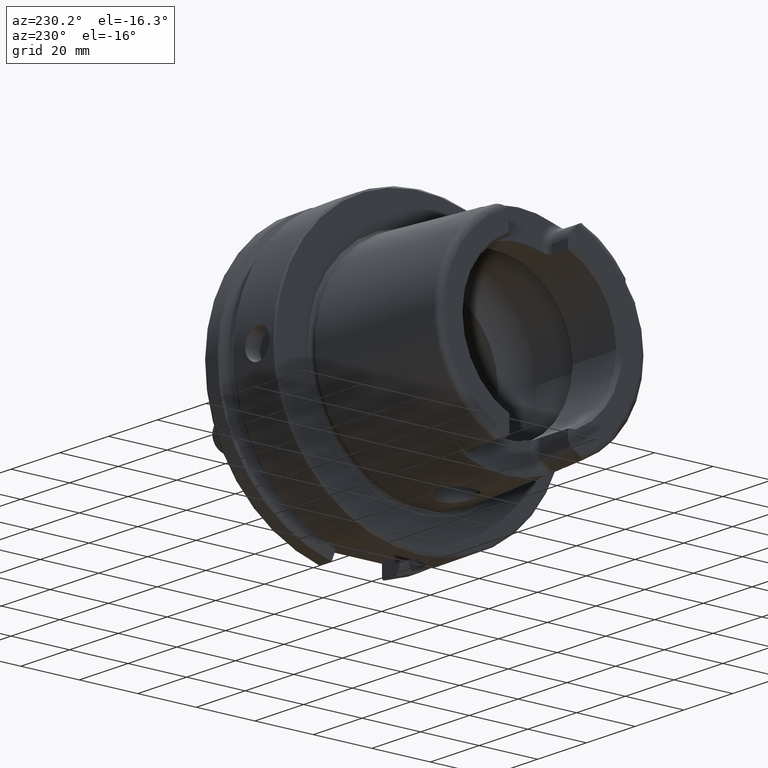
[diagram: clean part render]
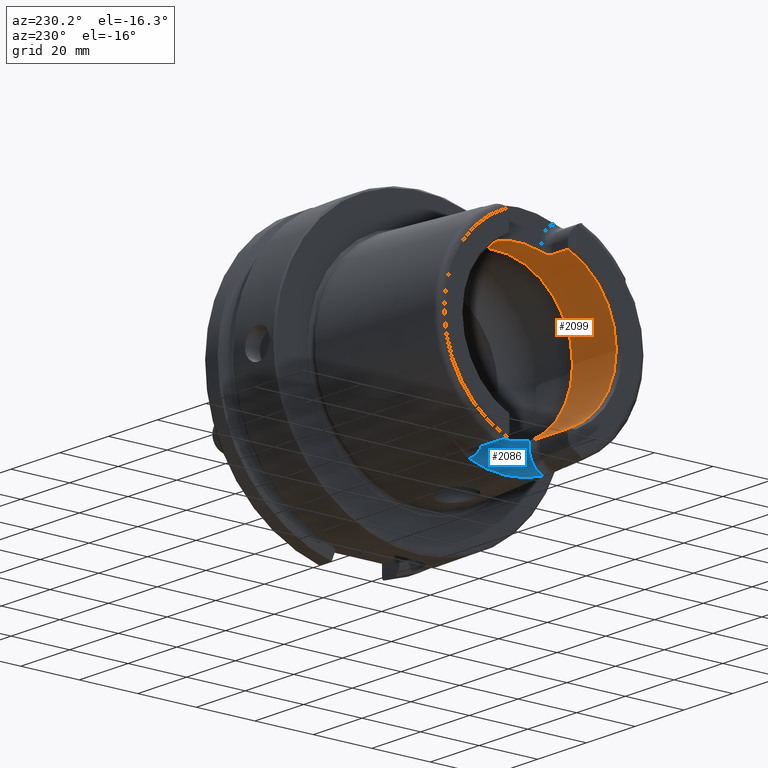
[diagram: same view with the hole feature highlighted: cylindrical wall and planar end face, labeled with their STEP entity ids]
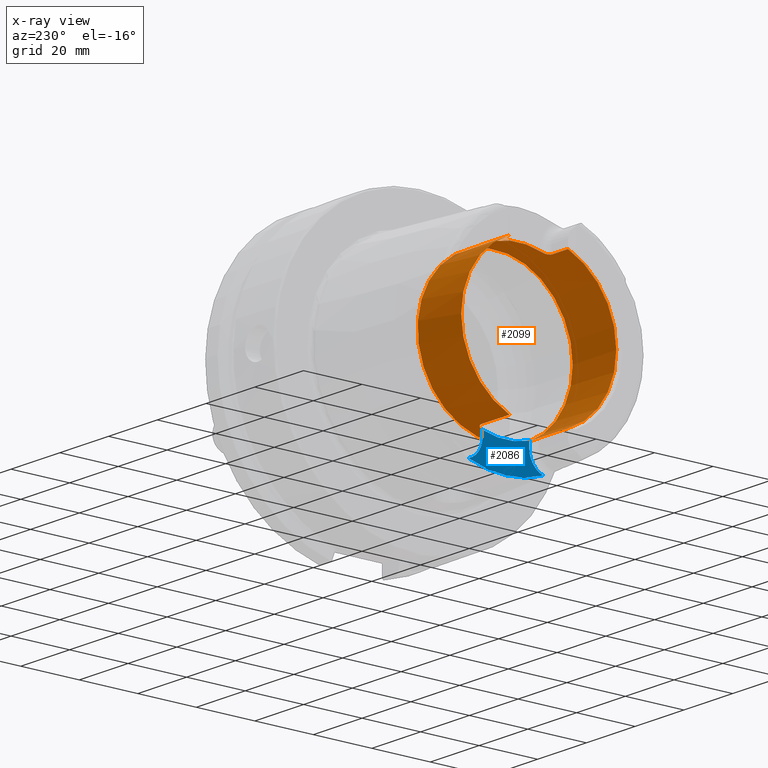
[diagram: x-ray of the same camera — body ghosted, the hole faces saturated]
A machine part, auxiliary view. The highlighted faces form one hole feature of diameter 53 mm: the cylindrical wall (entity #2099, orange) and its adjacent planar end face (entity #2086, blue) — they share a circular edge in the B-rep.
The next image is the same camera in x-ray (body ghosted, the hole faces saturated) — the bore reads through the body.
Wall:
#92=B_SPLINE_CURVE_WITH_KNOTS('',3,(#4445,#4446,#4447,#4448,#4449,#4450,
#4451,#4452,#4453,#4454),.UNSPECIFIED.,.F.,.F.,(4,2,2,2,4),(0.307245873696209,
0.387318131676521,0.467390389656833,0.542677307505841,0.617964225354849),
 .UNSPECIFIED.);
#93=B_SPLINE_CURVE_WITH_KNOTS('',3,(#4463,#4464,#4465,#4466,#4467,#4468,
#4469,#4470,#4471,#4472),.UNSPECIFIED.,.F.,.F.,(4,2,2,2,4),(0.61796422535485,
0.694491364966707,0.771018504578565,0.849854597041439,0.928690689504313),
 .UNSPECIFIED.);
#94=B_SPLINE_CURVE_WITH_KNOTS('',3,(#4485,#4486,#4487,#4488,#4489,#4490,
#4491,#4492,#4493,#4494),.UNSPECIFIED.,.F.,.F.,(4,2,2,2,4),(0.617964225354849,
0.693251143203857,0.768538061052865,0.848610319033177,0.928682577013489),
 .UNSPECIFIED.);
#95=B_SPLINE_CURVE_WITH_KNOTS('',3,(#4514,#4515,#4516,#4517,#4518,#4519,
#4520,#4521,#4522,#4523),.UNSPECIFIED.,.F.,.F.,(4,2,2,2,4),(0.307245873696209,
0.387318131676521,0.467390389656833,0.542677307505841,0.617964225354849),
 .UNSPECIFIED.);
#127=CYLINDRICAL_SURFACE('',#2353,26.5);
#205=LINE('',#3229,#312);
#213=LINE('',#3304,#320);
#217=LINE('',#3368,#324);
#276=LINE('',#4510,#383);
#280=LINE('',#4558,#387);
#312=VECTOR('',#2533,10.);
#320=VECTOR('',#2579,10.);
#324=VECTOR('',#2601,10.);
#383=VECTOR('',#2880,10.);
#387=VECTOR('',#2924,26.5);
#509=FACE_OUTER_BOUND('',#637,.T.);
#637=EDGE_LOOP('',(#1856,#1857,#1858,#1859,#1860,#1861,#1862,#1863,#1864,
#1865,#1866,#1867,#1868,#1869,#1870,#1871,#1872));
#698=CIRCLE('',#2207,26.5);
#699=CIRCLE('',#2208,26.5);
#762=CIRCLE('',#2332,26.5);
#767=CIRCLE('',#2344,26.5);
#768=CIRCLE('',#2347,26.5);
#771=CIRCLE('',#2354,26.5);
#772=CIRCLE('',#2355,26.5);
#841=VERTEX_POINT('',#3219);
#844=VERTEX_POINT('',#3227);
#853=VERTEX_POINT('',#3276);
#855=VERTEX_POINT('',#3282);
#856=VERTEX_POINT('',#3284);
#862=VERTEX_POINT('',#3302);
#868=VERTEX_POINT('',#3335);
#873=VERTEX_POINT('',#3367);
#980=VERTEX_POINT('',#4443);
#982=VERTEX_POINT('',#4462);
#986=VERTEX_POINT('',#4483);
#987=VERTEX_POINT('',#4484);
#989=VERTEX_POINT('',#4504);
#991=VERTEX_POINT('',#4555);
#992=VERTEX_POINT('',#4556);
#1068=EDGE_CURVE('',#841,#844,#205,.T.);
#1081=EDGE_CURVE('',#855,#856,#698,.T.);
#1082=EDGE_CURVE('',#856,#853,#699,.T.);
#1091=EDGE_CURVE('',#855,#862,#213,.T.);
#1104=EDGE_CURVE('',#873,#868,#217,.T.);
#1262=EDGE_CURVE('',#980,#862,#92,.T.);
#1266=EDGE_CURVE('',#873,#982,#93,.T.);
#1272=EDGE_CURVE('',#986,#987,#94,.T.);
#1278=EDGE_CURVE('',#989,#987,#762,.T.);
#1281=EDGE_CURVE('',#986,#853,#276,.T.);
#1284=EDGE_CURVE('',#989,#844,#95,.T.);
#1288=EDGE_CURVE('',#980,#982,#767,.T.);
#1290=EDGE_CURVE('',#841,#868,#768,.T.);
#1294=EDGE_CURVE('',#991,#992,#771,.T.);
#1295=EDGE_CURVE('',#991,#856,#280,.T.);
#1296=EDGE_CURVE('',#992,#991,#772,.T.);
#1856=ORIENTED_EDGE('',*,*,#1294,.F.);
#1857=ORIENTED_EDGE('',*,*,#1295,.T.);
#1858=ORIENTED_EDGE('',*,*,#1081,.F.);
#1859=ORIENTED_EDGE('',*,*,#1091,.T.);
#1860=ORIENTED_EDGE('',*,*,#1262,.F.);
#1861=ORIENTED_EDGE('',*,*,#1288,.T.);
#1862=ORIENTED_EDGE('',*,*,#1266,.F.);
#1863=ORIENTED_EDGE('',*,*,#1104,.T.);
#1864=ORIENTED_EDGE('',*,*,#1290,.F.);
#1865=ORIENTED_EDGE('',*,*,#1068,.T.);
#1866=ORIENTED_EDGE('',*,*,#1284,.F.);
#1867=ORIENTED_EDGE('',*,*,#1278,.T.);
#1868=ORIENTED_EDGE('',*,*,#1272,.F.);
#1869=ORIENTED_EDGE('',*,*,#1281,.T.);
#1870=ORIENTED_EDGE('',*,*,#1082,.F.);
#1871=ORIENTED_EDGE('',*,*,#1295,.F.);
#1872=ORIENTED_EDGE('',*,*,#1296,.F.);
#2099=ADVANCED_FACE('',(#509),#127,.F.);
#2207=AXIS2_PLACEMENT_3D('',#3285,#2557,#2558);
#2208=AXIS2_PLACEMENT_3D('',#3286,#2559,#2560);
#2332=AXIS2_PLACEMENT_3D('',#4505,#2873,#2874);
#2344=AXIS2_PLACEMENT_3D('',#4532,#2901,#2902);
#2347=AXIS2_PLACEMENT_3D('',#4547,#2907,#2908);
#2353=AXIS2_PLACEMENT_3D('',#4554,#2920,#2921);
#2354=AXIS2_PLACEMENT_3D('',#4557,#2922,#2923);
#2355=AXIS2_PLACEMENT_3D('',#4559,#2925,#2926);
#2533=DIRECTION('',(1.,0.,0.));
#2557=DIRECTION('center_axis',(1.,0.,0.));
#2558=DIRECTION('ref_axis',(0.,-1.,0.));
#2559=DIRECTION('center_axis',(1.,0.,0.));
#2560=DIRECTION('ref_axis',(0.,-1.,0.));
#2579=DIRECTION('',(1.,0.,0.));
#2601=DIRECTION('',(-1.,0.,0.));
#2873=DIRECTION('center_axis',(-1.,0.,0.));
#2874=DIRECTION('ref_axis',(0.,1.,0.));
#2880=DIRECTION('',(-1.,0.,0.));
#2901=DIRECTION('center_axis',(-1.,0.,0.));
#2902=DIRECTION('ref_axis',(0.,1.,0.));
#2907=DIRECTION('center_axis',(1.,0.,0.));
#2908=DIRECTION('ref_axis',(0.,-1.,0.));
#2920=DIRECTION('center_axis',(-1.,0.,0.));
#2921=DIRECTION('ref_axis',(0.,1.,0.));
#2922=DIRECTION('center_axis',(-1.,0.,0.));
#2923=DIRECTION('ref_axis',(0.,0.,1.));
#2924=DIRECTION('',(-1.,0.,0.));
#2925=DIRECTION('center_axis',(-1.,0.,0.));
#2926=DIRECTION('ref_axis',(0.,0.,1.));
#3219=CARTESIAN_POINT('',(-48.5,10.01,-24.5367051577835));
#3227=CARTESIAN_POINT('',(-37.,10.01,-24.5367051577835));
#3229=CARTESIAN_POINT('',(-40.2903629710818,10.01,-24.5367051577835));
#3276=CARTESIAN_POINT('',(-48.5,-10.01,-24.5367051577835));
#3282=CARTESIAN_POINT('',(-48.5,-10.01,24.5367051577835));
#3284=CARTESIAN_POINT('',(-48.5,-26.5,3.24531401774049E-15));
#3285=CARTESIAN_POINT('Origin',(-48.5,0.,0.));
#3286=CARTESIAN_POINT('Origin',(-48.5,0.,0.));
#3302=CARTESIAN_POINT('',(-42.,-10.01,24.5367051577835));
#3304=CARTESIAN_POINT('',(-40.2903629710818,-10.01,24.5367051577835));
#3335=CARTESIAN_POINT('',(-48.5,10.01,24.5367051577835));
#3367=CARTESIAN_POINT('',(-42.,10.01,24.5367051577835));
#3368=CARTESIAN_POINT('',(-40.2903629710818,10.01,24.5367051577835));
#4443=CARTESIAN_POINT('',(-40.,-8.01,25.2604414054862));
#4445=CARTESIAN_POINT('Ctrl Pts',(-40.,-8.01,25.2604414054862));
#4446=CARTESIAN_POINT('Ctrl Pts',(-40.,-8.26442271458071,25.1797648285777));
#4447=CARTESIAN_POINT('Ctrl Pts',(-40.0513332778729,-8.53503831367686,25.0892968127514));
#4448=CARTESIAN_POINT('Ctrl Pts',(-40.2604388709541,-9.03317850506395,24.9142806373643));
#4449=CARTESIAN_POINT('Ctrl Pts',(-40.4182028025644,-9.2607746884821,24.8299262887475));
#4450=CARTESIAN_POINT('Ctrl Pts',(-40.7762398849713,-9.61038047170956,24.6966285655713));
#4451=CARTESIAN_POINT('Ctrl Pts',(-40.996584045901,-9.75993653512726,24.6374761492843));
#4452=CARTESIAN_POINT('Ctrl Pts',(-41.4829332858843,-9.95981108540838,24.557356442995));
#4453=CARTESIAN_POINT('Ctrl Pts',(-41.74904360717,-10.01,24.5367051577835));
#4454=CARTESIAN_POINT('Ctrl Pts',(-42.,-10.01,24.5367051577835));
#4462=CARTESIAN_POINT('',(-40.,8.01,25.2604414054862));
#4463=CARTESIAN_POINT('Ctrl Pts',(-42.,10.01,24.5367051577835));
#4464=CARTESIAN_POINT('Ctrl Pts',(-41.7449095346271,10.01,24.5367051577835));
#4465=CARTESIAN_POINT('Ctrl Pts',(-41.4747619014646,9.95816285425487,24.5580391842641));
#4466=CARTESIAN_POINT('Ctrl Pts',(-40.9823460284033,9.75229566196282,24.640515927451));
#4467=CARTESIAN_POINT('Ctrl Pts',(-40.7599680829949,9.59839520774108,24.7013267120605));
#4468=CARTESIAN_POINT('Ctrl Pts',(-40.4063494382929,9.24477656303909,24.8358806096526));
#4469=CARTESIAN_POINT('Ctrl Pts',(-40.2529543645221,9.01930384320105,24.9192727261742));
#4470=CARTESIAN_POINT('Ctrl Pts',(-40.049776768453,8.52719637786957,25.0919293188873));
#4471=CARTESIAN_POINT('Ctrl Pts',(-40.,8.26049490494288,25.1810103236462));
#4472=CARTESIAN_POINT('Ctrl Pts',(-40.,8.01,25.2604414054862));
#4483=CARTESIAN_POINT('',(-37.,-10.01,-24.5367051577835));
#4484=CARTESIAN_POINT('',(-35.,-8.01,-25.2604414054862));
#4485=CARTESIAN_POINT('Ctrl Pts',(-37.,-10.01,-24.5367051577835));
#4486=CARTESIAN_POINT('Ctrl Pts',(-36.74904360717,-10.01,-24.5367051577835));
#4487=CARTESIAN_POINT('Ctrl Pts',(-36.4829332858843,-9.95981108540838,-24.557356442995));
#4488=CARTESIAN_POINT('Ctrl Pts',(-35.9965840459011,-9.75993653512726,-24.6374761492843));
#4489=CARTESIAN_POINT('Ctrl Pts',(-35.7762398849713,-9.61038047170956,-24.6966285655713));
#4490=CARTESIAN_POINT('Ctrl Pts',(-35.4182028025644,-9.2607746884821,-24.8299262887475));
#4491=CARTESIAN_POINT('Ctrl Pts',(-35.2604388709541,-9.03317850506395,-24.9142806373643));
#4492=CARTESIAN_POINT('Ctrl Pts',(-35.0513332778729,-8.53503831367686,-25.0892968127514));
#4493=CARTESIAN_POINT('Ctrl Pts',(-35.,-8.26442271458071,-25.1797648285777));
#4494=CARTESIAN_POINT('Ctrl Pts',(-35.,-8.01,-25.2604414054862));
#4504=CARTESIAN_POINT('',(-35.,8.01,-25.2604414054862));
#4505=CARTESIAN_POINT('Origin',(-35.,0.,0.));
#4510=CARTESIAN_POINT('',(-40.2903629710818,-10.01,-24.5367051577835));
#4514=CARTESIAN_POINT('Ctrl Pts',(-35.,8.01,-25.2604414054862));
#4515=CARTESIAN_POINT('Ctrl Pts',(-35.,8.26442271458071,-25.1797648285777));
#4516=CARTESIAN_POINT('Ctrl Pts',(-35.0513332778729,8.53503831367686,-25.0892968127514));
#4517=CARTESIAN_POINT('Ctrl Pts',(-35.2604388709541,9.03317850506395,-24.9142806373643));
#4518=CARTESIAN_POINT('Ctrl Pts',(-35.4182028025644,9.2607746884821,-24.8299262887475));
#4519=CARTESIAN_POINT('Ctrl Pts',(-35.7762398849713,9.61038047170956,-24.6966285655713));
#4520=CARTESIAN_POINT('Ctrl Pts',(-35.9965840459011,9.75993653512726,-24.6374761492843));
#4521=CARTESIAN_POINT('Ctrl Pts',(-36.4829332858843,9.95981108540838,-24.557356442995));
#4522=CARTESIAN_POINT('Ctrl Pts',(-36.74904360717,10.01,-24.5367051577835));
#4523=CARTESIAN_POINT('Ctrl Pts',(-37.,10.01,-24.5367051577835));
#4532=CARTESIAN_POINT('Origin',(-40.,0.,0.));
#4547=CARTESIAN_POINT('Origin',(-48.5,0.,0.));
#4554=CARTESIAN_POINT('Origin',(-40.2903629710818,0.,0.));
#4555=CARTESIAN_POINT('',(-30.5807259421637,-26.5,3.24531401774049E-15));
#4556=CARTESIAN_POINT('',(-30.5807259421637,-3.24531401774049E-15,-26.5));
#4557=CARTESIAN_POINT('Origin',(-30.5807259421637,0.,0.));
#4558=CARTESIAN_POINT('',(-40.2903629710818,-26.5,3.24531401774049E-15));
#4559=CARTESIAN_POINT('Origin',(-30.5807259421637,0.,0.));
End face:
#170=PLANE('',#2331);
#272=LINE('',#4495,#379);
#275=LINE('',#4507,#382);
#379=VECTOR('',#2860,10.);
#382=VECTOR('',#2875,10.);
#496=FACE_OUTER_BOUND('',#624,.T.);
#624=EDGE_LOOP('',(#1798,#1799,#1800,#1801,#1802,#1803));
#708=CIRCLE('',#2228,36.25399498998);
#759=CIRCLE('',#2325,6.88);
#762=CIRCLE('',#2332,26.5);
#763=CIRCLE('',#2333,6.88);
#883=VERTEX_POINT('',#3571);
#884=VERTEX_POINT('',#3582);
#985=VERTEX_POINT('',#4479);
#987=VERTEX_POINT('',#4484);
#989=VERTEX_POINT('',#4504);
#990=VERTEX_POINT('',#4506);
#1117=EDGE_CURVE('',#883,#884,#708,.T.);
#1271=EDGE_CURVE('',#985,#883,#759,.T.);
#1273=EDGE_CURVE('',#987,#985,#272,.T.);
#1278=EDGE_CURVE('',#989,#987,#762,.T.);
#1279=EDGE_CURVE('',#990,#989,#275,.T.);
#1280=EDGE_CURVE('',#884,#990,#763,.T.);
#1798=ORIENTED_EDGE('',*,*,#1271,.F.);
#1799=ORIENTED_EDGE('',*,*,#1273,.F.);
#1800=ORIENTED_EDGE('',*,*,#1278,.F.);
#1801=ORIENTED_EDGE('',*,*,#1279,.F.);
#1802=ORIENTED_EDGE('',*,*,#1280,.F.);
#1803=ORIENTED_EDGE('',*,*,#1117,.F.);
#2086=ADVANCED_FACE('',(#496),#170,.T.);
#2228=AXIS2_PLACEMENT_3D('',#3583,#2611,#2612);
#2325=AXIS2_PLACEMENT_3D('',#4481,#2856,#2857);
#2331=AXIS2_PLACEMENT_3D('',#4503,#2871,#2872);
#2332=AXIS2_PLACEMENT_3D('',#4505,#2873,#2874);
#2333=AXIS2_PLACEMENT_3D('',#4508,#2876,#2877);
#2611=DIRECTION('center_axis',(1.,0.,0.));
#2612=DIRECTION('ref_axis',(0.,1.,0.));
#2856=DIRECTION('center_axis',(-1.,0.,0.));
#2857=DIRECTION('ref_axis',(0.,0.510937901715381,-0.8596176246394));
#2860=DIRECTION('',(0.,0.,-1.));
#2871=DIRECTION('center_axis',(-1.,0.,0.));
#2872=DIRECTION('ref_axis',(0.,0.,1.));
#2873=DIRECTION('center_axis',(-1.,0.,0.));
#2874=DIRECTION('ref_axis',(0.,1.,0.));
#2875=DIRECTION('',(0.,0.,1.));
#2876=DIRECTION('center_axis',(-1.,0.,0.));
#2877=DIRECTION('ref_axis',(0.,-0.510937901715381,-0.8596176246394));
#3571=CARTESIAN_POINT('',(-35.,-12.7918651267415,-33.9222690767105));
#3582=CARTESIAN_POINT('',(-35.,12.7918651267415,-33.9222690767105));
#3583=CARTESIAN_POINT('Origin',(-35.,0.,0.));
#4479=CARTESIAN_POINT('',(-35.,-8.01,-27.37));
#4481=CARTESIAN_POINT('Origin',(-35.,-14.89,-27.37));
#4484=CARTESIAN_POINT('',(-35.,-8.01,-25.2604414054862));
#4495=CARTESIAN_POINT('',(-35.,-8.01,-28.685));
#4503=CARTESIAN_POINT('Origin',(-35.,8.88178419700125E-15,-30.));
#4504=CARTESIAN_POINT('',(-35.,8.01,-25.2604414054862));
#4505=CARTESIAN_POINT('Origin',(-35.,0.,0.));
#4506=CARTESIAN_POINT('',(-35.,8.01,-27.37));
#4507=CARTESIAN_POINT('',(-35.,8.01,-25.));
#4508=CARTESIAN_POINT('Origin',(-35.,14.89,-27.37));